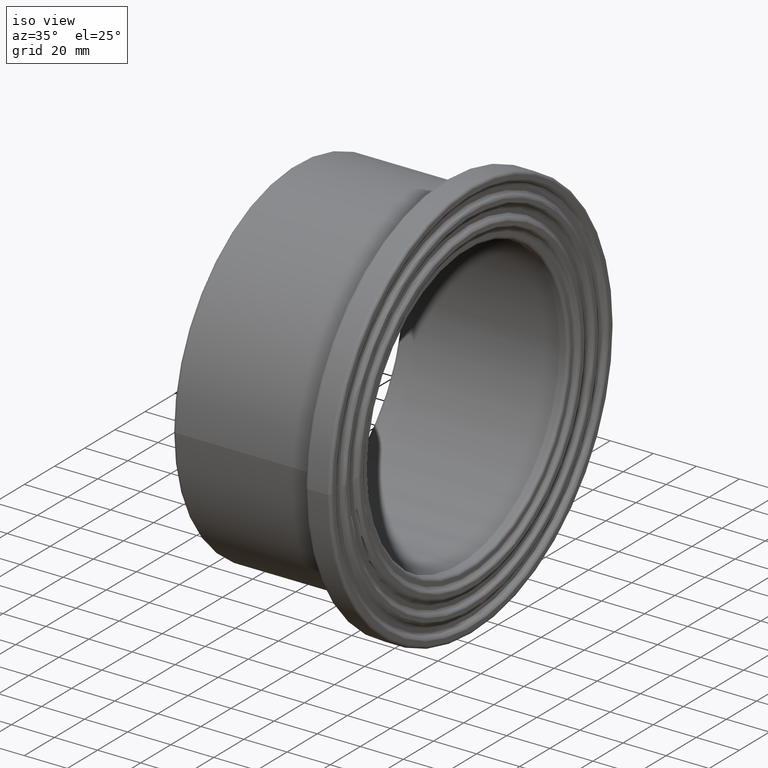
[diagram: clean part render]
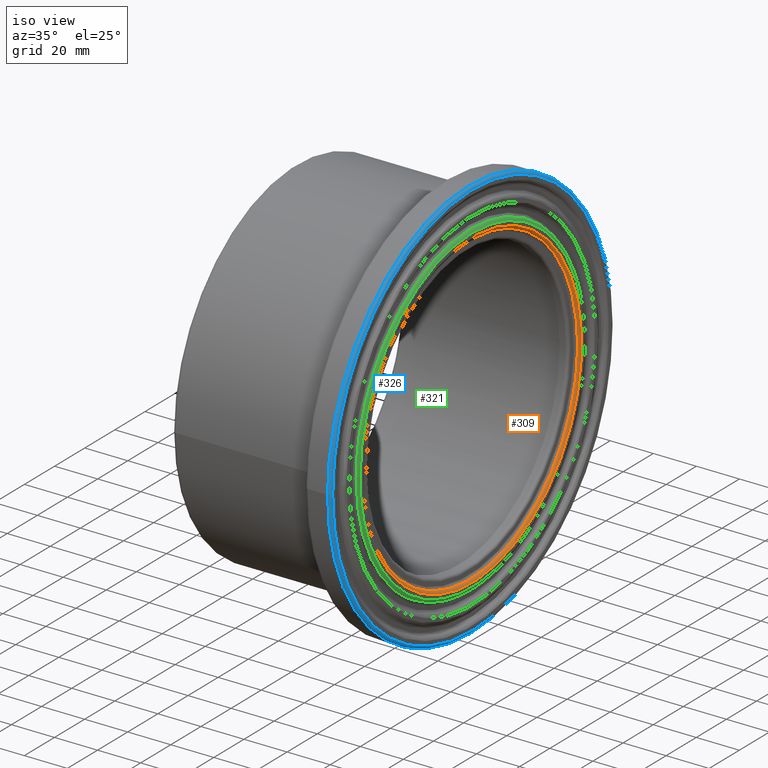
[diagram: same view with three faces highlighted in distinct colors, each labeled with its STEP entity id]
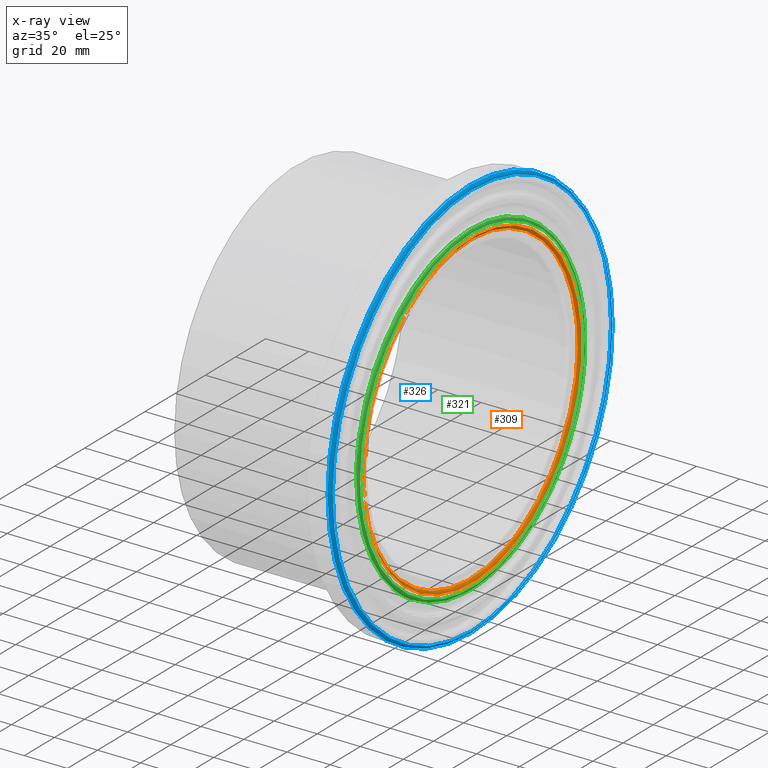
[diagram: x-ray of the same camera — body ghosted, the three highlighted faces saturated]
A machine part, iso view with three faces highlighted in distinct colors.
The next image is the same camera in x-ray (body ghosted, the three faces saturated) — at least one of them is partly hidden behind the body in this view.
Their STEP definitions:

[orange] entity #309 — the highlighted toroidal blend (fillet) surface has major radius 72.4833 mm and minor (blend) radius 1.4 mm.
#25=B_SPLINE_CURVE_WITH_KNOTS('',3,(#716,#717,#718,#719,#720,#721,#722,
#723,#724,#725,#726,#727,#728,#729,#730,#731,#732,#733,#734,#735,#736,#737,
#738,#739,#740,#741,#742,#743,#744,#745,#746,#747,#748,#749,#750,#751,#752,
#753),.UNSPECIFIED.,.T.,.F.,(4,1,1,1,1,1,1,1,1,1,1,1,1,1,1,1,1,1,1,1,1,
1,1,1,1,1,1,1,1,1,1,1,1,1,1,4),(21.8178464219605,23.3762640235291,24.9346816250978,
26.4930992266664,28.051516828235,29.0904618959474,30.1294069636598,32.2072970990846,
33.246242166797,34.2851872345094,35.3241323022218,36.3630773699342,37.4020224376466,
38.440967505359,39.4799125730714,40.5188576407839,42.5967477762087,44.6746379116335,
45.7135829793459,46.7525280470583,48.8304181824831,49.8693632501955,50.9083083179079,
51.9472533856203,52.9861984533327,54.0251435210451,55.0640885887575,56.1030336564699,
57.1419787241823,58.1809237918948,59.2198688596072,60.7782864611758,62.3367040627444,
63.1159128635287,63.895121664313,65.4535392658816),.UNSPECIFIED.);
#46=FACE_BOUND('',#102,.T.);
#70=FACE_OUTER_BOUND('',#101,.T.);
#101=EDGE_LOOP('',(#239));
#102=EDGE_LOOP('',(#240));
#149=CIRCLE('',#343,72.4833333333333);
#172=VERTEX_POINT('',#714);
#173=VERTEX_POINT('',#755);
#201=EDGE_CURVE('',#172,#172,#25,.T.);
#202=EDGE_CURVE('',#173,#173,#149,.T.);
#239=ORIENTED_EDGE('',*,*,#201,.F.);
#240=ORIENTED_EDGE('',*,*,#202,.T.);
#296=TOROIDAL_SURFACE('',#342,72.4833333333333,1.4);
#309=ADVANCED_FACE('',(#70,#46),#296,.T.);
#342=AXIS2_PLACEMENT_3D('',#754,#397,#398);
#343=AXIS2_PLACEMENT_3D('',#756,#399,#400);
#397=DIRECTION('center_axis',(-1.,0.,0.));
#398=DIRECTION('ref_axis',(0.,0.,1.));
#399=DIRECTION('center_axis',(1.,0.,0.));
#400=DIRECTION('ref_axis',(0.,1.,6.12323399573677E-17));
#714=CARTESIAN_POINT('',(81.1,-71.1756401955309,-0.0577824614840613));
#716=CARTESIAN_POINT('Ctrl Pts',(81.1,-71.1768057274205,-0.0586076905184905));
#717=CARTESIAN_POINT('Ctrl Pts',(81.1,-71.1748791873368,-5.35903913642619));
#718=CARTESIAN_POINT('Ctrl Pts',(81.1000000000001,-69.9445845629296,-16.0905232318301));
#719=CARTESIAN_POINT('Ctrl Pts',(81.1,-64.6539900110415,-31.1756837843878));
#720=CARTESIAN_POINT('Ctrl Pts',(81.1,-56.0380870765707,-44.8497412929448));
#721=CARTESIAN_POINT('Ctrl Pts',(81.1,-45.9818489028584,-54.8822392328796));
#722=CARTESIAN_POINT('Ctrl Pts',(81.1,-35.6057793604696,-61.9351387505585));
#723=CARTESIAN_POINT('Ctrl Pts',(81.1,-22.8510930871004,-68.0623889299427));
#724=CARTESIAN_POINT('Ctrl Pts',(81.1,-8.74825764680152,-71.2664218852784));
#725=CARTESIAN_POINT('Ctrl Pts',(81.1,5.39705010823838,-71.2327671375883));
#726=CARTESIAN_POINT('Ctrl Pts',(81.1,16.0428904426377,-69.6226877988981));
#727=CARTESIAN_POINT('Ctrl Pts',(81.1,26.1836579863873,-66.4640242126126));
#728=CARTESIAN_POINT('Ctrl Pts',(81.1,35.809521994142,-61.8261856733495));
#729=CARTESIAN_POINT('Ctrl Pts',(81.1,44.6634452769059,-55.7552055653287));
#730=CARTESIAN_POINT('Ctrl Pts',(81.1,52.4215587631848,-48.5390937008044));
#731=CARTESIAN_POINT('Ctrl Pts',(81.1000000000001,59.1131078629093,-40.1217107187487));
#732=CARTESIAN_POINT('Ctrl Pts',(81.1,66.1949511595139,-27.7980586136672));
#733=CARTESIAN_POINT('Ctrl Pts',(81.1,71.4301990414328,-10.727231957083));
#734=CARTESIAN_POINT('Ctrl Pts',(81.1,71.4479356721216,7.13655385252205));
#735=CARTESIAN_POINT('Ctrl Pts',(81.1000000000001,68.2523756628288,21.0999029481874));
#736=CARTESIAN_POINT('Ctrl Pts',(81.1,63.0861253913124,34.2783604025386));
#737=CARTESIAN_POINT('Ctrl Pts',(81.1000000000001,54.942162329805,46.2203485495528));
#738=CARTESIAN_POINT('Ctrl Pts',(81.1,44.5605963054296,55.8377493857815));
#739=CARTESIAN_POINT('Ctrl Pts',(81.1,35.6638981019817,61.9078653433799));
#740=CARTESIAN_POINT('Ctrl Pts',(81.1,26.0935994850792,66.4999566000501));
#741=CARTESIAN_POINT('Ctrl Pts',(81.1,15.8829882409445,69.6598794807487));
#742=CARTESIAN_POINT('Ctrl Pts',(81.1,5.26621828282683,71.2441474353965));
#743=CARTESIAN_POINT('Ctrl Pts',(81.1000000000001,-5.3264385161233,71.242365852279));
#744=CARTESIAN_POINT('Ctrl Pts',(81.1,-15.9659217086773,69.6381411730917));
#745=CARTESIAN_POINT('Ctrl Pts',(81.1,-26.1382868387418,66.4840968376944));
#746=CARTESIAN_POINT('Ctrl Pts',(81.1,-35.7391074229907,61.8632574083668));
#747=CARTESIAN_POINT('Ctrl Pts',(81.1000000000001,-46.08304036402,54.7944811299419));
#748=CARTESIAN_POINT('Ctrl Pts',(81.1,-56.1161766341123,44.7503132363359));
#749=CARTESIAN_POINT('Ctrl Pts',(81.1,-63.2940065944013,33.3184614342516));
#750=CARTESIAN_POINT('Ctrl Pts',(81.1000000000001,-67.3268626721252,23.5339443752229));
#751=CARTESIAN_POINT('Ctrl Pts',(81.1,-70.2990828219925,13.2271394236499));
#752=CARTESIAN_POINT('Ctrl Pts',(81.1,-71.1787322675043,5.2418237553892));
#753=CARTESIAN_POINT('Ctrl Pts',(81.1,-71.1768057274205,-0.0586076905184905));
#754=CARTESIAN_POINT('Origin',(80.6,0.,0.));
#755=CARTESIAN_POINT('',(82.,-72.4833333333333,-1.33149723237296E-14));
#756=CARTESIAN_POINT('Origin',(82.,0.,0.));

[blue] entity #326 — the highlighted toroidal blend (fillet) surface has major radius 92.6 mm and minor (blend) radius 1.4 mm.
#59=FACE_BOUND('',#132,.T.);
#87=FACE_OUTER_BOUND('',#131,.T.);
#131=EDGE_LOOP('',(#281));
#132=EDGE_LOOP('',(#282));
#151=CIRCLE('',#347,92.6);
#163=CIRCLE('',#370,94.);
#177=VERTEX_POINT('',#1186);
#191=VERTEX_POINT('',#2200);
#207=EDGE_CURVE('',#177,#177,#151,.T.);
#224=EDGE_CURVE('',#191,#191,#163,.T.);
#281=ORIENTED_EDGE('',*,*,#207,.T.);
#282=ORIENTED_EDGE('',*,*,#224,.T.);
#302=TOROIDAL_SURFACE('',#369,92.6,1.4);
#326=ADVANCED_FACE('',(#87,#59),#302,.T.);
#347=AXIS2_PLACEMENT_3D('',#1187,#407,#408);
#369=AXIS2_PLACEMENT_3D('',#2199,#451,#452);
#370=AXIS2_PLACEMENT_3D('',#2201,#453,#454);
#407=DIRECTION('center_axis',(-1.,0.,0.));
#408=DIRECTION('ref_axis',(0.,1.,6.12323399573677E-17));
#451=DIRECTION('center_axis',(-1.,0.,0.));
#452=DIRECTION('ref_axis',(0.,0.,1.));
#453=DIRECTION('center_axis',(1.,0.,0.));
#454=DIRECTION('ref_axis',(0.,1.,6.12323399573677E-17));
#1186=CARTESIAN_POINT('',(82.,-92.6,5.67011468005225E-15));
#1187=CARTESIAN_POINT('Origin',(82.,0.,0.));
#2199=CARTESIAN_POINT('Origin',(80.6,0.,0.));
#2200=CARTESIAN_POINT('',(80.6,-94.,-1.72675198679777E-14));
#2201=CARTESIAN_POINT('Origin',(80.6,0.,0.));

[green] entity #321 — the highlighted face is a freeform B-spline surface patch.
#18=B_SPLINE_SURFACE_WITH_KNOTS('',3,3,((#1576,#1577,#1578,#1579,#1580,
#1581,#1582,#1583,#1584,#1585,#1586,#1587,#1588,#1589,#1590,#1591,#1592,
#1593,#1594,#1595,#1596,#1597,#1598,#1599,#1600,#1601,#1602,#1603,#1604,
#1605,#1606,#1607,#1608,#1609,#1610,#1611,#1612,#1613,#1614,#1615,#1616,
#1617,#1618,#1619,#1620,#1621,#1622,#1623,#1624,#1625,#1626,#1627),(#1628,
#1629,#1630,#1631,#1632,#1633,#1634,#1635,#1636,#1637,#1638,#1639,#1640,
#1641,#1642,#1643,#1644,#1645,#1646,#1647,#1648,#1649,#1650,#1651,#1652,
#1653,#1654,#1655,#1656,#1657,#1658,#1659,#1660,#1661,#1662,#1663,#1664,
#1665,#1666,#1667,#1668,#1669,#1670,#1671,#1672,#1673,#1674,#1675,#1676,
#1677,#1678,#1679),(#1680,#1681,#1682,#1683,#1684,#1685,#1686,#1687,#1688,
#1689,#1690,#1691,#1692,#1693,#1694,#1695,#1696,#1697,#1698,#1699,#1700,
#1701,#1702,#1703,#1704,#1705,#1706,#1707,#1708,#1709,#1710,#1711,#1712,
#1713,#1714,#1715,#1716,#1717,#1718,#1719,#1720,#1721,#1722,#1723,#1724,
#1725,#1726,#1727,#1728,#1729,#1730,#1731),(#1732,#1733,#1734,#1735,#1736,
#1737,#1738,#1739,#1740,#1741,#1742,#1743,#1744,#1745,#1746,#1747,#1748,
#1749,#1750,#1751,#1752,#1753,#1754,#1755,#1756,#1757,#1758,#1759,#1760,
#1761,#1762,#1763,#1764,#1765,#1766,#1767,#1768,#1769,#1770,#1771,#1772,
#1773,#1774,#1775,#1776,#1777,#1778,#1779,#1780,#1781,#1782,#1783),(#1784,
#1785,#1786,#1787,#1788,#1789,#1790,#1791,#1792,#1793,#1794,#1795,#1796,
#1797,#1798,#1799,#1800,#1801,#1802,#1803,#1804,#1805,#1806,#1807,#1808,
#1809,#1810,#1811,#1812,#1813,#1814,#1815,#1816,#1817,#1818,#1819,#1820,
#1821,#1822,#1823,#1824,#1825,#1826,#1827,#1828,#1829,#1830,#1831,#1832,
#1833,#1834,#1835)),.UNSPECIFIED.,.F.,.T.,.F.,(4,1,4),(4,1,1,1,1,1,1,1,
1,1,1,1,1,1,1,1,1,1,1,1,1,1,1,1,1,1,1,1,1,1,1,1,1,1,1,1,1,1,1,1,1,1,1,1,
1,1,1,1,1,4),(0.,0.5,1.),(23.2490949391893,24.9097445777029,26.5703942162164,
28.2310438547299,29.0613686739867,29.8916934932434,30.7220183125002,31.9675055413854,
33.2129927702705,34.0433175895273,34.873642408784,35.2888048184124,36.5342920472975,
38.1949416858111,38.7484915653156,39.8555913243246,40.9626910833336,41.7930159025904,
42.0697908423426,42.7617281917233,43.1768906013516,45.3910901193697,46.2214149386264,
47.0517397578832,47.6052896373877,48.7123893963967,49.8194891554057,51.4801387939193,
52.2066730107689,53.1407884324328,53.5559508420612,54.8014380709463,55.6317628902031,
56.4620877094598,57.2924125287166,57.9151561431592,58.9530621672301,59.7833869864869,
60.6137118057436,61.4440366250004,61.8591990346288,63.1046862635139,64.7653359020275,
65.38807951647,66.425985540541,67.0487291549836,67.2563103597978,68.0866351790545,
68.9169599983113,69.747284817568),.UNSPECIFIED.);
#26=B_SPLINE_CURVE_WITH_KNOTS('',3,(#759,#760,#761,#762,#763,#764,#765,
#766,#767,#768,#769,#770,#771,#772,#773,#774,#775,#776,#777,#778,#779,#780,
#781,#782,#783,#784,#785,#786,#787,#788,#789,#790,#791,#792,#793,#794,#795,
#796,#797,#798,#799,#800,#801,#802,#803,#804,#805,#806,#807,#808,#809,#810),
 .UNSPECIFIED.,.T.,.F.,(4,1,1,1,1,1,1,1,1,1,1,1,1,1,1,1,1,1,1,1,1,1,1,1,
1,1,1,1,1,1,1,1,1,1,1,1,1,1,1,1,1,1,1,1,1,1,1,1,1,4),(23.2490949391893,
24.9097445777029,26.5703942162164,28.2310438547299,29.0613686739867,29.8916934932434,
30.7220183125002,31.9675055413854,33.2129927702705,34.0433175895273,34.873642408784,
35.2888048184124,36.5342920472975,38.1949416858111,38.7484915653156,39.8555913243246,
40.9626910833336,41.7930159025904,42.0697908423426,42.7617281917233,43.1768906013516,
45.3910901193697,46.2214149386264,47.0517397578832,47.6052896373877,48.7123893963967,
49.8194891554057,51.4801387939193,52.2066730107689,53.1407884324328,53.5559508420612,
54.8014380709463,55.6317628902031,56.4620877094598,57.2924125287166,57.9151561431592,
58.9530621672301,59.7833869864869,60.6137118057436,61.4440366250004,61.8591990346288,
63.1046862635139,64.7653359020275,65.38807951647,66.425985540541,67.0487291549836,
67.2563103597978,68.0866351790545,68.9169599983113,69.747284817568),
 .UNSPECIFIED.);
#31=B_SPLINE_CURVE_WITH_KNOTS('',3,(#1838,#1839,#1840,#1841,#1842,#1843,
#1844,#1845,#1846,#1847,#1848,#1849,#1850,#1851,#1852,#1853,#1854,#1855,
#1856,#1857,#1858,#1859,#1860,#1861,#1862,#1863,#1864,#1865,#1866,#1867,
#1868,#1869,#1870,#1871,#1872,#1873,#1874,#1875,#1876,#1877,#1878,#1879,
#1880,#1881,#1882,#1883,#1884,#1885,#1886,#1887,#1888,#1889),
 .UNSPECIFIED.,.T.,.F.,(4,1,1,1,1,1,1,1,1,1,1,1,1,1,1,1,1,1,1,1,1,1,1,1,
1,1,1,1,1,1,1,1,1,1,1,1,1,1,1,1,1,1,1,1,1,1,1,1,1,4),(-69.747284817568,
-68.9169599983113,-68.0866351790545,-67.2563103597978,-67.0487291549836,
-66.425985540541,-65.38807951647,-64.7653359020275,-63.1046862635139,-61.8591990346288,
-61.4440366250004,-60.6137118057436,-59.7833869864869,-58.9530621672301,
-57.9151561431592,-57.2924125287166,-56.4620877094598,-55.6317628902031,
-54.8014380709463,-53.5559508420612,-53.1407884324328,-52.2066730107689,
-51.4801387939193,-49.8194891554057,-48.7123893963967,-47.6052896373877,
-47.0517397578832,-46.2214149386264,-45.3910901193697,-43.1768906013516,
-42.7617281917233,-42.0697908423426,-41.7930159025904,-40.9626910833336,
-39.8555913243246,-38.7484915653156,-38.1949416858111,-36.5342920472975,
-35.2888048184124,-34.873642408784,-34.0433175895273,-33.2129927702705,
-31.9675055413854,-30.7220183125002,-29.8916934932434,-29.0613686739867,
-28.2310438547299,-26.5703942162164,-24.9097445777029,-23.2490949391893),
 .UNSPECIFIED.);
#82=FACE_OUTER_BOUND('',#123,.T.);
#123=EDGE_LOOP('',(#267,#268,#269,#270));
#160=CIRCLE('',#363,1.4);
#174=VERTEX_POINT('',#758);
#187=VERTEX_POINT('',#1836);
#203=EDGE_CURVE('',#174,#174,#26,.T.);
#218=EDGE_CURVE('',#187,#174,#160,.T.);
#219=EDGE_CURVE('',#187,#187,#31,.T.);
#267=ORIENTED_EDGE('',*,*,#218,.T.);
#268=ORIENTED_EDGE('',*,*,#203,.T.);
#269=ORIENTED_EDGE('',*,*,#218,.F.);
#270=ORIENTED_EDGE('',*,*,#219,.T.);
#321=ADVANCED_FACE('',(#82),#18,.F.);
#363=AXIS2_PLACEMENT_3D('',#1837,#439,#440);
#439=DIRECTION('center_axis',(0.,0.000811828910623439,0.999999670466856));
#440=DIRECTION('ref_axis',(0.357142857142862,-0.934049465815498,0.00075828861018263));
#758=CARTESIAN_POINT('',(82.,-74.4513027663623,0.0604417399368365));
#759=CARTESIAN_POINT('Ctrl Pts',(82.,-74.4526992300747,0.0600329264292912));
#760=CARTESIAN_POINT('Ctrl Pts',(81.9999999999999,-74.455895720333,5.59914785828535));
#761=CARTESIAN_POINT('Ctrl Pts',(82.0000000000002,-73.1598189154375,16.8386830527923));
#762=CARTESIAN_POINT('Ctrl Pts',(81.9999999999998,-67.6322950821705,32.601179076856));
#763=CARTESIAN_POINT('Ctrl Pts',(82.0000000000002,-60.1170815074412,44.5424737361398));
#764=CARTESIAN_POINT('Ctrl Pts',(81.9999999999999,-52.6989053398692,52.8055325888788));
#765=CARTESIAN_POINT('Ctrl Pts',(82.0000000000002,-46.4689677222737,58.3744005344638));
#766=CARTESIAN_POINT('Ctrl Pts',(81.9999999999999,-38.438027237235,64.0491233904722));
#767=CARTESIAN_POINT('Ctrl Pts',(82.0000000000001,-28.5598259443649,69.1342717387768));
#768=CARTESIAN_POINT('Ctrl Pts',(81.9999999999999,-17.8881068852598,72.5288895845535));
#769=CARTESIAN_POINT('Ctrl Pts',(82.0000000000001,-8.21550200655324,74.1540929304394));
#770=CARTESIAN_POINT('Ctrl Pts',(82.,-1.29968193247817,74.5291141783682));
#771=CARTESIAN_POINT('Ctrl Pts',(82.,7.04469214573193,74.289730956626));
#772=CARTESIAN_POINT('Ctrl Pts',(82.,18.1838840419723,72.6959041563912));
#773=CARTESIAN_POINT('Ctrl Pts',(82.,29.1236141703567,68.8435182600528));
#774=CARTESIAN_POINT('Ctrl Pts',(82.,39.0058201044717,63.6100278409341));
#775=CARTESIAN_POINT('Ctrl Pts',(82.,46.7164926930483,58.3246592554254));
#776=CARTESIAN_POINT('Ctrl Pts',(82.,54.1573263935831,51.3980900002443));
#777=CARTESIAN_POINT('Ctrl Pts',(82.,58.9192126449824,45.6385513514273));
#778=CARTESIAN_POINT('Ctrl Pts',(82.,62.4123259805339,40.6962042954939));
#779=CARTESIAN_POINT('Ctrl Pts',(82.,64.8452378627665,36.7224512690442));
#780=CARTESIAN_POINT('Ctrl Pts',(82.0000000000001,69.9213926508306,26.8548581176747));
#781=CARTESIAN_POINT('Ctrl Pts',(82.,73.3520025208349,15.6896001815112));
#782=CARTESIAN_POINT('Ctrl Pts',(82.0000000000001,74.554450482759,2.77306041472059));
#783=CARTESIAN_POINT('Ctrl Pts',(82.,74.4159965875308,-4.62171396664853));
#784=CARTESIAN_POINT('Ctrl Pts',(82.,73.4874536626543,-12.9454668224168));
#785=CARTESIAN_POINT('Ctrl Pts',(82.,71.3899481376841,-22.0743815706923));
#786=CARTESIAN_POINT('Ctrl Pts',(82.0000000000001,66.6683834669963,-34.1209080437327));
#787=CARTESIAN_POINT('Ctrl Pts',(82.,60.3517741590026,-44.1806679168293));
#788=CARTESIAN_POINT('Ctrl Pts',(82.,52.9850585495027,-52.5220822236548));
#789=CARTESIAN_POINT('Ctrl Pts',(82.0000000000001,47.8444450877523,-57.1846523574503));
#790=CARTESIAN_POINT('Ctrl Pts',(81.9999999999999,40.855056022447,-62.4459451601611));
#791=CARTESIAN_POINT('Ctrl Pts',(82.,33.6080739465463,-66.7097337027766));
#792=CARTESIAN_POINT('Ctrl Pts',(82.,24.6422014279076,-70.4188242853112));
#793=CARTESIAN_POINT('Ctrl Pts',(82.,16.5805124720978,-72.7451169804398));
#794=CARTESIAN_POINT('Ctrl Pts',(82.0000000000001,8.97863621147008,-74.0288422467505));
#795=CARTESIAN_POINT('Ctrl Pts',(82.,0.665528669308349,-74.606542606743));
#796=CARTESIAN_POINT('Ctrl Pts',(82.0000000000001,-7.66947849160246,-74.255193523605));
#797=CARTESIAN_POINT('Ctrl Pts',(82.,-16.6596945552736,-72.7263423512559));
#798=CARTESIAN_POINT('Ctrl Pts',(82.,-24.7032085374861,-70.3976972802785));
#799=CARTESIAN_POINT('Ctrl Pts',(82.0000000000001,-31.0998628143658,-67.7436182922303));
#800=CARTESIAN_POINT('Ctrl Pts',(82.,-38.5408053717796,-63.9010170300682));
#801=CARTESIAN_POINT('Ctrl Pts',(82.0000000000001,-47.8755288977713,-57.6438749121672));
#802=CARTESIAN_POINT('Ctrl Pts',(81.9999999999999,-56.2293030090247,-49.2770682036672));
#803=CARTESIAN_POINT('Ctrl Pts',(82.,-62.8424564841505,-40.2261616216055));
#804=CARTESIAN_POINT('Ctrl Pts',(82.,-66.6429962353382,-33.542941150113));
#805=CARTESIAN_POINT('Ctrl Pts',(82.,-69.1040734920599,-27.8191883501283));
#806=CARTESIAN_POINT('Ctrl Pts',(82.,-71.0134966586394,-22.5894514249345));
#807=CARTESIAN_POINT('Ctrl Pts',(82.,-72.7522851007319,-16.5404752437142));
#808=CARTESIAN_POINT('Ctrl Pts',(82.,-74.1510186712794,-8.25579511552117));
#809=CARTESIAN_POINT('Ctrl Pts',(82.,-74.4511009849455,-2.70952453949872));
#810=CARTESIAN_POINT('Ctrl Pts',(82.,-74.4526992300747,0.0600329264292909));
#1576=CARTESIAN_POINT('Ctrl Pts',(82.,-74.4526992300747,0.0600329264292912));
#1577=CARTESIAN_POINT('Ctrl Pts',(81.9999999999999,-74.455895720333,5.59914785828535));
#1578=CARTESIAN_POINT('Ctrl Pts',(82.0000000000002,-73.1598189154375,16.8386830527923));
#1579=CARTESIAN_POINT('Ctrl Pts',(81.9999999999998,-67.6322950821705,32.601179076856));
#1580=CARTESIAN_POINT('Ctrl Pts',(82.0000000000002,-60.1170815074412,44.5424737361398));
#1581=CARTESIAN_POINT('Ctrl Pts',(81.9999999999999,-52.6989053398692,52.8055325888788));
#1582=CARTESIAN_POINT('Ctrl Pts',(82.0000000000002,-46.4689677222737,58.3744005344638));
#1583=CARTESIAN_POINT('Ctrl Pts',(81.9999999999999,-38.438027237235,64.0491233904722));
#1584=CARTESIAN_POINT('Ctrl Pts',(82.0000000000001,-28.5598259443649,69.1342717387768));
#1585=CARTESIAN_POINT('Ctrl Pts',(81.9999999999999,-17.8881068852598,72.5288895845535));
#1586=CARTESIAN_POINT('Ctrl Pts',(82.0000000000001,-8.21550200655324,74.1540929304394));
#1587=CARTESIAN_POINT('Ctrl Pts',(82.,-1.29968193247817,74.5291141783682));
#1588=CARTESIAN_POINT('Ctrl Pts',(82.,7.04469214573193,74.289730956626));
#1589=CARTESIAN_POINT('Ctrl Pts',(82.,18.1838840419723,72.6959041563912));
#1590=CARTESIAN_POINT('Ctrl Pts',(82.,29.1236141703567,68.8435182600528));
#1591=CARTESIAN_POINT('Ctrl Pts',(82.,39.0058201044717,63.6100278409341));
#1592=CARTESIAN_POINT('Ctrl Pts',(82.,46.7164926930483,58.3246592554254));
#1593=CARTESIAN_POINT('Ctrl Pts',(82.,54.1573263935831,51.3980900002443));
#1594=CARTESIAN_POINT('Ctrl Pts',(82.,58.9192126449824,45.6385513514273));
#1595=CARTESIAN_POINT('Ctrl Pts',(82.,62.4123259805339,40.6962042954939));
#1596=CARTESIAN_POINT('Ctrl Pts',(82.,64.8452378627665,36.7224512690442));
#1597=CARTESIAN_POINT('Ctrl Pts',(82.0000000000001,69.9213926508306,26.8548581176747));
#1598=CARTESIAN_POINT('Ctrl Pts',(82.,73.3520025208349,15.6896001815112));
#1599=CARTESIAN_POINT('Ctrl Pts',(82.0000000000001,74.554450482759,2.77306041472059));
#1600=CARTESIAN_POINT('Ctrl Pts',(82.,74.4159965875308,-4.62171396664853));
#1601=CARTESIAN_POINT('Ctrl Pts',(82.,73.4874536626543,-12.9454668224168));
#1602=CARTESIAN_POINT('Ctrl Pts',(82.,71.3899481376841,-22.0743815706923));
#1603=CARTESIAN_POINT('Ctrl Pts',(82.0000000000001,66.6683834669963,-34.1209080437327));
#1604=CARTESIAN_POINT('Ctrl Pts',(82.,60.3517741590026,-44.1806679168293));
#1605=CARTESIAN_POINT('Ctrl Pts',(82.,52.9850585495027,-52.5220822236548));
#1606=CARTESIAN_POINT('Ctrl Pts',(82.0000000000001,47.8444450877523,-57.1846523574503));
#1607=CARTESIAN_POINT('Ctrl Pts',(81.9999999999999,40.855056022447,-62.4459451601611));
#1608=CARTESIAN_POINT('Ctrl Pts',(82.,33.6080739465463,-66.7097337027766));
#1609=CARTESIAN_POINT('Ctrl Pts',(82.,24.6422014279076,-70.4188242853112));
#1610=CARTESIAN_POINT('Ctrl Pts',(82.,16.5805124720978,-72.7451169804398));
#1611=CARTESIAN_POINT('Ctrl Pts',(82.0000000000001,8.97863621147008,-74.0288422467505));
#1612=CARTESIAN_POINT('Ctrl Pts',(82.,0.665528669308349,-74.606542606743));
#1613=CARTESIAN_POINT('Ctrl Pts',(82.0000000000001,-7.66947849160246,-74.255193523605));
#1614=CARTESIAN_POINT('Ctrl Pts',(82.,-16.6596945552736,-72.7263423512559));
#1615=CARTESIAN_POINT('Ctrl Pts',(82.,-24.7032085374861,-70.3976972802785));
#1616=CARTESIAN_POINT('Ctrl Pts',(82.0000000000001,-31.0998628143658,-67.7436182922303));
#1617=CARTESIAN_POINT('Ctrl Pts',(82.,-38.5408053717796,-63.9010170300682));
#1618=CARTESIAN_POINT('Ctrl Pts',(82.0000000000001,-47.8755288977713,-57.6438749121672));
#1619=CARTESIAN_POINT('Ctrl Pts',(81.9999999999999,-56.2293030090247,-49.2770682036672));
#1620=CARTESIAN_POINT('Ctrl Pts',(82.,-62.8424564841505,-40.2261616216055));
#1621=CARTESIAN_POINT('Ctrl Pts',(82.,-66.6429962353382,-33.542941150113));
#1622=CARTESIAN_POINT('Ctrl Pts',(82.,-69.1040734920599,-27.8191883501283));
#1623=CARTESIAN_POINT('Ctrl Pts',(82.,-71.0134966586394,-22.5894514249345));
#1624=CARTESIAN_POINT('Ctrl Pts',(82.,-72.7522851007319,-16.5404752437142));
#1625=CARTESIAN_POINT('Ctrl Pts',(82.,-74.1510186712794,-8.25579511552117));
#1626=CARTESIAN_POINT('Ctrl Pts',(82.,-74.4511009849455,-2.70952453949872));
#1627=CARTESIAN_POINT('Ctrl Pts',(82.,-74.4526992300747,0.0600329264292912));
#1628=CARTESIAN_POINT('Ctrl Pts',(82.,-74.734008657283,0.060258730579085));
#1629=CARTESIAN_POINT('Ctrl Pts',(81.9999999999999,-74.7372173643075,5.62030458317384));
#1630=CARTESIAN_POINT('Ctrl Pts',(82.0000000000002,-73.4362437212181,16.902304269129));
#1631=CARTESIAN_POINT('Ctrl Pts',(81.9999999999998,-67.8878339686154,32.724359833832));
#1632=CARTESIAN_POINT('Ctrl Pts',(82.0000000000002,-60.3442270157786,44.7107695749508));
#1633=CARTESIAN_POINT('Ctrl Pts',(81.9999999999999,-52.8980203016522,53.0050523059585));
#1634=CARTESIAN_POINT('Ctrl Pts',(82.0000000000002,-46.6445431901416,58.5949610233206));
#1635=CARTESIAN_POINT('Ctrl Pts',(81.9999999999999,-38.5832623627787,64.2911233161564));
#1636=CARTESIAN_POINT('Ctrl Pts',(82.0000000000001,-28.667733210956,69.3954871242492));
#1637=CARTESIAN_POINT('Ctrl Pts',(81.9999999999999,-17.9556959718556,72.8029299563525));
#1638=CARTESIAN_POINT('Ctrl Pts',(82.0000000000001,-8.24654223551465,74.4342742517443));
#1639=CARTESIAN_POINT('Ctrl Pts',(82.,-1.30459383046572,74.8107124896752));
#1640=CARTESIAN_POINT('Ctrl Pts',(82.,7.07131068071327,74.5704245156832));
#1641=CARTESIAN_POINT('Ctrl Pts',(82.,18.2525913931147,72.9705756698215));
#1642=CARTESIAN_POINT('Ctrl Pts',(82.,29.2336513498767,69.1036348807878));
#1643=CARTESIAN_POINT('Ctrl Pts',(82.,39.1531998254698,63.8503694886418));
#1644=CARTESIAN_POINT('Ctrl Pts',(82.,46.8930044233816,58.5450305305611));
#1645=CARTESIAN_POINT('Ctrl Pts',(82.,54.3619527617004,51.592291297428));
#1646=CARTESIAN_POINT('Ctrl Pts',(82.,59.1418292580149,45.8109923506438));
#1647=CARTESIAN_POINT('Ctrl Pts',(82.,62.6481433898173,40.8499685413258));
#1648=CARTESIAN_POINT('Ctrl Pts',(82.,65.0902459533,36.8612036504683));
#1649=CARTESIAN_POINT('Ctrl Pts',(82.0000000000001,70.1855834998614,26.9563206285237));
#1650=CARTESIAN_POINT('Ctrl Pts',(82.,73.6291518557778,15.7488848215472));
#1651=CARTESIAN_POINT('Ctrl Pts',(82.0000000000001,74.8361446670081,2.78353867860269));
#1652=CARTESIAN_POINT('Ctrl Pts',(82.,74.6971672640274,-4.63917898175438));
#1653=CARTESIAN_POINT('Ctrl Pts',(82.,73.7651162515798,-12.9943775409876));
#1654=CARTESIAN_POINT('Ctrl Pts',(82.,71.6596858483236,-22.1577867752668));
#1655=CARTESIAN_POINT('Ctrl Pts',(82.0000000000001,66.9202796496429,-34.2498308442137));
#1656=CARTESIAN_POINT('Ctrl Pts',(82.,60.579807316639,-44.3475962493494));
#1657=CARTESIAN_POINT('Ctrl Pts',(82.,53.1852545252802,-52.7205307015855));
#1658=CARTESIAN_POINT('Ctrl Pts',(82.0000000000001,48.025218368848,-57.4007174890097));
#1659=CARTESIAN_POINT('Ctrl Pts',(81.9999999999999,41.0094207959168,-62.6818890068898));
#1660=CARTESIAN_POINT('Ctrl Pts',(82.,33.7350565795373,-66.961787942928));
#1661=CARTESIAN_POINT('Ctrl Pts',(82.,24.7353096994586,-70.6848920636809));
#1662=CARTESIAN_POINT('Ctrl Pts',(82.,16.6431579350954,-73.0199748361801));
#1663=CARTESIAN_POINT('Ctrl Pts',(82.0000000000001,9.01256470094517,-74.3085499661844));
#1664=CARTESIAN_POINT('Ctrl Pts',(82.,0.668041673786519,-74.8884334108157));
#1665=CARTESIAN_POINT('Ctrl Pts',(82.0000000000001,-7.69845854914456,-74.5357566602272));
#1666=CARTESIAN_POINT('Ctrl Pts',(82.,-16.7226388675471,-73.001129355159));
#1667=CARTESIAN_POINT('Ctrl Pts',(82.,-24.7965461021909,-70.6636857914579));
#1668=CARTESIAN_POINT('Ctrl Pts',(82.0000000000001,-31.217370054719,-67.9995780158828));
#1669=CARTESIAN_POINT('Ctrl Pts',(82.,-38.6864268316926,-64.1424585434578));
#1670=CARTESIAN_POINT('Ctrl Pts',(82.0000000000001,-48.0564199528303,-57.8616741753215));
#1671=CARTESIAN_POINT('Ctrl Pts',(81.9999999999999,-56.4417574916668,-49.4632559135925));
#1672=CARTESIAN_POINT('Ctrl Pts',(82.,-63.0798983778083,-40.37815017688));
#1673=CARTESIAN_POINT('Ctrl Pts',(82.,-66.8947985411794,-33.6696779008024));
#1674=CARTESIAN_POINT('Ctrl Pts',(82.,-69.3651730793674,-27.9243011648346));
#1675=CARTESIAN_POINT('Ctrl Pts',(82.,-71.2818134153783,-22.6747976551595));
#1676=CARTESIAN_POINT('Ctrl Pts',(82.,-73.0271688145047,-16.6029745614916));
#1677=CARTESIAN_POINT('Ctrl Pts',(82.,-74.4311889135337,-8.28698568382809));
#1678=CARTESIAN_POINT('Ctrl Pts',(82.,-74.7324043037708,-2.71976419571828));
#1679=CARTESIAN_POINT('Ctrl Pts',(82.,-74.734008657283,0.060258730579085));
#1680=CARTESIAN_POINT('Ctrl Pts',(81.824936217071,-75.2957734783214,0.060714525699144));
#1681=CARTESIAN_POINT('Ctrl Pts',(81.824936217071,-75.2990059179456,5.66254854000237));
#1682=CARTESIAN_POINT('Ctrl Pts',(81.8249362170711,-73.9882524531257,17.0293605315843));
#1683=CARTESIAN_POINT('Ctrl Pts',(81.8249362170709,-68.3981386560838,32.9703396439312));
#1684=CARTESIAN_POINT('Ctrl Pts',(81.8249362170711,-60.7978223892893,45.0468591746493));
#1685=CARTESIAN_POINT('Ctrl Pts',(81.824936217071,-53.2956490900365,53.4034804205844));
#1686=CARTESIAN_POINT('Ctrl Pts',(81.824936217071,-46.9951669311278,59.0354089033661));
#1687=CARTESIAN_POINT('Ctrl Pts',(81.824936217071,-38.8732809546228,64.7743932467805));
#1688=CARTESIAN_POINT('Ctrl Pts',(81.824936217071,-28.8832304551397,69.9171205026787));
#1689=CARTESIAN_POINT('Ctrl Pts',(81.8249362170712,-18.0906627500135,73.3501796956671));
#1690=CARTESIAN_POINT('Ctrl Pts',(81.824936217071,-8.30853289682237,74.9937856303476));
#1691=CARTESIAN_POINT('Ctrl Pts',(81.824936217071,-1.31439686980175,75.3730534364163));
#1692=CARTESIAN_POINT('Ctrl Pts',(81.824936217071,7.12446159487765,75.1309600165791));
#1693=CARTESIAN_POINT('Ctrl Pts',(81.824936217071,18.3897879177067,73.5190853009419));
#1694=CARTESIAN_POINT('Ctrl Pts',(81.8249362170711,29.4534033094954,69.6230749814571));
#1695=CARTESIAN_POINT('Ctrl Pts',(81.824936217071,39.4475045910256,64.3303241556559));
#1696=CARTESIAN_POINT('Ctrl Pts',(81.8249362170711,47.2454929706749,58.9851066260679));
#1697=CARTESIAN_POINT('Ctrl Pts',(81.824936217071,54.7705830535496,51.9801015260004));
#1698=CARTESIAN_POINT('Ctrl Pts',(81.824936217071,59.5863944631682,46.155341668963));
#1699=CARTESIAN_POINT('Ctrl Pts',(81.824936217071,63.1190579971265,41.1570342358577));
#1700=CARTESIAN_POINT('Ctrl Pts',(81.8249362170711,65.5795223456331,37.1382796432004));
#1701=CARTESIAN_POINT('Ctrl Pts',(81.824936217071,70.7131519367092,27.1589611123513));
#1702=CARTESIAN_POINT('Ctrl Pts',(81.8249362170711,74.1826151236117,15.8672568930202));
#1703=CARTESIAN_POINT('Ctrl Pts',(81.8249362170711,75.3986763861804,2.80446038645344));
#1704=CARTESIAN_POINT('Ctrl Pts',(81.824936217071,75.2586553612242,-4.67404409303966));
#1705=CARTESIAN_POINT('Ctrl Pts',(81.8249362170711,74.3195974608343,-13.0920598904329));
#1706=CARTESIAN_POINT('Ctrl Pts',(81.824936217071,72.198340111919,-22.3243432700815));
#1707=CARTESIAN_POINT('Ctrl Pts',(81.8249362170712,67.423313298992,-34.5072775296343));
#1708=CARTESIAN_POINT('Ctrl Pts',(81.824936217071,61.0351710278173,-44.680957238409));
#1709=CARTESIAN_POINT('Ctrl Pts',(81.824936217071,53.5850429040046,-53.1168208313332));
#1710=CARTESIAN_POINT('Ctrl Pts',(81.8249362170711,48.3862183402738,-57.8321885649416));
#1711=CARTESIAN_POINT('Ctrl Pts',(81.8249362170709,41.3176841593614,-63.1530589084818));
#1712=CARTESIAN_POINT('Ctrl Pts',(81.8249362170711,33.9886407059539,-67.4651285457472));
#1713=CARTESIAN_POINT('Ctrl Pts',(81.824936217071,24.9212385427147,-71.21622081006));
#1714=CARTESIAN_POINT('Ctrl Pts',(81.824936217071,16.7682670394509,-73.5688546874112));
#1715=CARTESIAN_POINT('Ctrl Pts',(81.8249362170711,9.08029994091257,-74.8671172908863));
#1716=CARTESIAN_POINT('Ctrl Pts',(81.824936217071,0.673067705961394,-75.4513587413576));
#1717=CARTESIAN_POINT('Ctrl Pts',(81.8249362170711,-7.75632127724532,-75.0960313662628));
#1718=CARTESIAN_POINT('Ctrl Pts',(81.824936217071,-16.8483463338017,-73.5498673099942));
#1719=CARTESIAN_POINT('Ctrl Pts',(81.824936217071,-24.9829386223441,-71.1948535825906));
#1720=CARTESIAN_POINT('Ctrl Pts',(81.8249362170711,-31.4520248072046,-68.5107220630742));
#1721=CARTESIAN_POINT('Ctrl Pts',(81.8249362170711,-38.9772264478141,-64.6246076840883));
#1722=CARTESIAN_POINT('Ctrl Pts',(81.824936217071,-48.4176535510764,-58.2966129144044));
#1723=CARTESIAN_POINT('Ctrl Pts',(81.8249362170711,-56.8660229552269,-49.8350613611048));
#1724=CARTESIAN_POINT('Ctrl Pts',(81.8249362170711,-63.5540603846339,-40.6816684418314));
#1725=CARTESIAN_POINT('Ctrl Pts',(81.824936217071,-67.3976349716846,-33.9227699930945));
#1726=CARTESIAN_POINT('Ctrl Pts',(81.8249362170711,-69.8865833080888,-28.1341991748944));
#1727=CARTESIAN_POINT('Ctrl Pts',(81.824936217071,-71.8176233305754,-22.845254600292));
#1728=CARTESIAN_POINT('Ctrl Pts',(81.824936217071,-73.5761061462606,-16.7277673648431));
#1729=CARTESIAN_POINT('Ctrl Pts',(81.824936217071,-74.990675609657,-8.34928563738865));
#1730=CARTESIAN_POINT('Ctrl Pts',(81.824936217071,-75.2941572585093,-2.74020248145246));
#1731=CARTESIAN_POINT('Ctrl Pts',(81.824936217071,-75.2957734783214,0.060714525699144));
#1732=CARTESIAN_POINT('Ctrl Pts',(81.3627520539164,-75.6599260254542,0.0610009641591265));
#1733=CARTESIAN_POINT('Ctrl Pts',(81.3627520539164,-75.6631750783912,5.68994206470162));
#1734=CARTESIAN_POINT('Ctrl Pts',(81.3627520539163,-74.3460839176316,17.1117092315282));
#1735=CARTESIAN_POINT('Ctrl Pts',(81.3627520539165,-68.7289282060638,33.1298053461058));
#1736=CARTESIAN_POINT('Ctrl Pts',(81.3627520539164,-61.0918675027587,45.2647059830353));
#1737=CARTESIAN_POINT('Ctrl Pts',(81.3627520539164,-53.5533975881472,53.6617636472286));
#1738=CARTESIAN_POINT('Ctrl Pts',(81.3627520539164,-47.2224407842214,59.3209266946329));
#1739=CARTESIAN_POINT('Ctrl Pts',(81.3627520539163,-39.0612994504434,65.0876542520917));
#1740=CARTESIAN_POINT('Ctrl Pts',(81.3627520539166,-29.0229030452605,70.2552667419999));
#1741=CARTESIAN_POINT('Ctrl Pts',(81.3627520539163,-18.178163680845,73.704921359171));
#1742=CARTESIAN_POINT('Ctrl Pts',(81.3627520539165,-8.34870885500015,75.3564786431801));
#1743=CARTESIAN_POINT('Ctrl Pts',(81.3627520539164,-1.32076231080177,75.737580862542));
#1744=CARTESIAN_POINT('Ctrl Pts',(81.3627520539164,7.15892548181555,75.4943146703433));
#1745=CARTESIAN_POINT('Ctrl Pts',(81.3627520539163,18.4787405085195,73.874644543676));
#1746=CARTESIAN_POINT('Ctrl Pts',(81.3627520539165,29.5958314214301,69.9597977774306));
#1747=CARTESIAN_POINT('Ctrl Pts',(81.3627520539164,39.6382950425957,64.6414430378043));
#1748=CARTESIAN_POINT('Ctrl Pts',(81.3627520539164,47.473984674833,59.2703721795381));
#1749=CARTESIAN_POINT('Ctrl Pts',(81.3627520539165,55.0354715256685,52.2314967272295));
#1750=CARTESIAN_POINT('Ctrl Pts',(81.3627520539163,59.8745602684699,46.3785760317908));
#1751=CARTESIAN_POINT('Ctrl Pts',(81.3627520539165,63.4243266923198,41.3560758458542));
#1752=CARTESIAN_POINT('Ctrl Pts',(81.3627520539164,65.8966782785077,37.3179024242312));
#1753=CARTESIAN_POINT('Ctrl Pts',(81.3627520539165,71.0551581123135,27.2902751573548));
#1754=CARTESIAN_POINT('Ctrl Pts',(81.3627520539163,74.5413752464987,15.9440210586552));
#1755=CARTESIAN_POINT('Ctrl Pts',(81.3627520539164,75.7633287401111,2.8180280261566));
#1756=CARTESIAN_POINT('Ctrl Pts',(81.3627520539164,75.6226278679983,-4.69666671481961));
#1757=CARTESIAN_POINT('Ctrl Pts',(81.3627520539163,74.679030419727,-13.1553630669133));
#1758=CARTESIAN_POINT('Ctrl Pts',(81.3627520539166,72.5475158887025,-22.4323114098224));
#1759=CARTESIAN_POINT('Ctrl Pts',(81.3627520539163,67.749383417745,-34.6741759903867));
#1760=CARTESIAN_POINT('Ctrl Pts',(81.3627520539165,61.3303703288848,-44.8970311142481));
#1761=CARTESIAN_POINT('Ctrl Pts',(81.3627520539164,53.8441897492252,-53.3737158548545));
#1762=CARTESIAN_POINT('Ctrl Pts',(81.3627520539164,48.6202250673272,-58.1118868398503));
#1763=CARTESIAN_POINT('Ctrl Pts',(81.3627520539164,41.517505028078,-63.4584879026134));
#1764=CARTESIAN_POINT('Ctrl Pts',(81.3627520539164,34.1530133347536,-67.7914137154026));
#1765=CARTESIAN_POINT('Ctrl Pts',(81.3627520539164,25.0417724238961,-71.5606420347321));
#1766=CARTESIAN_POINT('Ctrl Pts',(81.3627520539164,16.8493509672644,-73.9246574334599));
#1767=CARTESIAN_POINT('Ctrl Pts',(81.3627520539164,9.12424261218266,-75.2291951702018));
#1768=CARTESIAN_POINT('Ctrl Pts',(81.3627520539164,0.676311559440916,-75.8162644523059));
#1769=CARTESIAN_POINT('Ctrl Pts',(81.3627520539165,-7.79384702173699,-75.4592176056277));
#1770=CARTESIAN_POINT('Ctrl Pts',(81.3627520539163,-16.9298152293656,-73.9055788297119));
#1771=CARTESIAN_POINT('Ctrl Pts',(81.3627520539164,-25.1037623581986,-71.5391753992514));
#1772=CARTESIAN_POINT('Ctrl Pts',(81.3627520539164,-31.6041404753395,-68.8420576309914));
#1773=CARTESIAN_POINT('Ctrl Pts',(81.3627520539164,-39.1657335842743,-64.9371526413068));
#1774=CARTESIAN_POINT('Ctrl Pts',(81.3627520539165,-48.6518146169358,-58.5785503941363));
#1775=CARTESIAN_POINT('Ctrl Pts',(81.3627520539163,-57.1410415930098,-50.0760853736554));
#1776=CARTESIAN_POINT('Ctrl Pts',(81.3627520539164,-63.8614279141159,-40.8784131681918));
#1777=CARTESIAN_POINT('Ctrl Pts',(81.3627520539163,-67.7235953004251,-34.0868255520221));
#1778=CARTESIAN_POINT('Ctrl Pts',(81.3627520539164,-70.2245699067423,-28.2702770113623));
#1779=CARTESIAN_POINT('Ctrl Pts',(81.3627520539164,-72.164967823037,-22.9557061495589));
#1780=CARTESIAN_POINT('Ctrl Pts',(81.3627520539164,-73.9319353343345,-16.8086915353123));
#1781=CARTESIAN_POINT('Ctrl Pts',(81.3627520539164,-75.3533573588724,-8.38964529440077));
#1782=CARTESIAN_POINT('Ctrl Pts',(81.3627520539164,-75.6583014989857,-2.75346958611211));
#1783=CARTESIAN_POINT('Ctrl Pts',(81.3627520539164,-75.6599260254542,0.0610009641591265));
#1784=CARTESIAN_POINT('Ctrl Pts',(81.1,-75.7603930098283,0.0610873500470238));
#1785=CARTESIAN_POINT('Ctrl Pts',(81.1,-75.7636456435236,5.69749178539499));
#1786=CARTESIAN_POINT('Ctrl Pts',(81.1,-74.4448044312475,17.1344391679511));
#1787=CARTESIAN_POINT('Ctrl Pts',(81.1000000000001,-68.8201946815675,33.1737890632273));
#1788=CARTESIAN_POINT('Ctrl Pts',(81.1,-61.1729832323911,45.3248216757301));
#1789=CARTESIAN_POINT('Ctrl Pts',(81.1,-53.6245135639554,53.7330136233765));
#1790=CARTESIAN_POINT('Ctrl Pts',(81.1,-47.2851527722502,59.3996936570122));
#1791=CARTESIAN_POINT('Ctrl Pts',(81.1,-39.1131561397991,65.1740878460599));
#1792=CARTESIAN_POINT('Ctrl Pts',(81.1,-29.0614532476662,70.34855218872));
#1793=CARTESIAN_POINT('Ctrl Pts',(81.1,-18.2022951732242,73.8027934019164));
#1794=CARTESIAN_POINT('Ctrl Pts',(81.1,-8.35979980881722,75.456541962794));
#1795=CARTESIAN_POINT('Ctrl Pts',(81.1,-1.3225096606376,75.8381501170174));
#1796=CARTESIAN_POINT('Ctrl Pts',(81.1,7.1684257402761,75.5945623472427));
#1797=CARTESIAN_POINT('Ctrl Pts',(81.1,18.5032673860195,73.9727414324328));
#1798=CARTESIAN_POINT('Ctrl Pts',(81.1,29.635143899814,70.0526918902369));
#1799=CARTESIAN_POINT('Ctrl Pts',(81.1000000000001,39.6909217710638,64.7272799835393));
#1800=CARTESIAN_POINT('Ctrl Pts',(81.1,47.5370252934557,59.3490787177593));
#1801=CARTESIAN_POINT('Ctrl Pts',(81.1,55.1085504537628,52.3008505889079));
#1802=CARTESIAN_POINT('Ctrl Pts',(81.1,59.9540748955199,46.4401508949818));
#1803=CARTESIAN_POINT('Ctrl Pts',(81.1000000000001,63.5085415819655,41.4109960191941));
#1804=CARTESIAN_POINT('Ctrl Pts',(81.1,65.9841853432028,37.3674476439027));
#1805=CARTESIAN_POINT('Ctrl Pts',(81.1000000000001,71.1494981619371,27.326539215604));
#1806=CARTESIAN_POINT('Ctrl Pts',(81.0999999999999,74.6403635664503,15.965173703712));
#1807=CARTESIAN_POINT('Ctrl Pts',(81.1000000000001,75.8639314304944,2.82176669256828));
#1808=CARTESIAN_POINT('Ctrl Pts',(81.1000000000001,75.7230457188316,-4.70289015862662));
#1809=CARTESIAN_POINT('Ctrl Pts',(81.1,74.7781937840785,-13.1728421441276));
#1810=CARTESIAN_POINT('Ctrl Pts',(81.1000000000001,72.6438474869621,-22.4620979566719));
#1811=CARTESIAN_POINT('Ctrl Pts',(81.0999999999999,67.8393528377186,-34.7202106837947));
#1812=CARTESIAN_POINT('Ctrl Pts',(81.1000000000001,61.4117980463963,-44.9566610670799));
#1813=CARTESIAN_POINT('Ctrl Pts',(81.1,53.915692793816,-53.444584710923));
#1814=CARTESIAN_POINT('Ctrl Pts',(81.1,48.6847891435625,-58.189048638022));
#1815=CARTESIAN_POINT('Ctrl Pts',(81.1,41.5726378318981,-63.5427512518304));
#1816=CARTESIAN_POINT('Ctrl Pts',(81.1000000000001,34.1983691232677,-67.8814293526894));
#1817=CARTESIAN_POINT('Ctrl Pts',(81.0999999999999,25.0750192284702,-71.655666729544));
#1818=CARTESIAN_POINT('Ctrl Pts',(81.1000000000001,16.8717340563938,-74.0228186348662));
#1819=CARTESIAN_POINT('Ctrl Pts',(81.1,9.13633777025609,-75.3290913650434));
#1820=CARTESIAN_POINT('Ctrl Pts',(81.1,0.677218073589225,-75.9169385051412));
#1821=CARTESIAN_POINT('Ctrl Pts',(81.1,-7.80418588866311,-75.5594182957002));
#1822=CARTESIAN_POINT('Ctrl Pts',(81.1,-16.9523069006663,-74.0037142464384));
#1823=CARTESIAN_POINT('Ctrl Pts',(81.1,-25.1370978723053,-71.6341686479305));
#1824=CARTESIAN_POINT('Ctrl Pts',(81.1,-31.646103549411,-68.933473182313));
#1825=CARTESIAN_POINT('Ctrl Pts',(81.1,-39.2177394785691,-65.0233801324712));
#1826=CARTESIAN_POINT('Ctrl Pts',(81.1,-48.7164189123637,-58.6563370182165));
#1827=CARTESIAN_POINT('Ctrl Pts',(81.1000000000001,-57.2169194493307,-50.1425749783148));
#1828=CARTESIAN_POINT('Ctrl Pts',(81.1,-63.9462269357067,-40.9326974743001));
#1829=CARTESIAN_POINT('Ctrl Pts',(81.1,-67.8135197024833,-34.1320923286498));
#1830=CARTESIAN_POINT('Ctrl Pts',(81.1,-70.3178235373329,-28.307807029363));
#1831=CARTESIAN_POINT('Ctrl Pts',(81.1,-72.2607839809175,-22.9862145432889));
#1832=CARTESIAN_POINT('Ctrl Pts',(81.1,-74.0301126566557,-16.8309936105975));
#1833=CARTESIAN_POINT('Ctrl Pts',(81.1,-75.4534137070749,-8.40080062950697));
#1834=CARTESIAN_POINT('Ctrl Pts',(81.1,-75.7587666929806,-2.75711486762695));
#1835=CARTESIAN_POINT('Ctrl Pts',(81.1,-75.7603930098283,0.0610873500470238));
#1836=CARTESIAN_POINT('',(81.1,-75.758972018504,0.0615033439910922));
#1837=CARTESIAN_POINT('Origin',(80.6,-74.4513027663623,0.0604417399368365));
#1838=CARTESIAN_POINT('Ctrl Pts',(81.1,-75.7603930098283,0.0610873500470242));
#1839=CARTESIAN_POINT('Ctrl Pts',(81.1,-75.7587666929806,-2.75711486762695));
#1840=CARTESIAN_POINT('Ctrl Pts',(81.1,-75.4534137070749,-8.40080062950697));
#1841=CARTESIAN_POINT('Ctrl Pts',(81.1,-74.0301126566557,-16.8309936105975));
#1842=CARTESIAN_POINT('Ctrl Pts',(81.1,-72.2607839809175,-22.9862145432889));
#1843=CARTESIAN_POINT('Ctrl Pts',(81.1,-70.3178235373329,-28.307807029363));
#1844=CARTESIAN_POINT('Ctrl Pts',(81.1,-67.8135197024833,-34.1320923286498));
#1845=CARTESIAN_POINT('Ctrl Pts',(81.1,-63.9462269357067,-40.9326974743001));
#1846=CARTESIAN_POINT('Ctrl Pts',(81.1000000000001,-57.2169194493307,-50.1425749783148));
#1847=CARTESIAN_POINT('Ctrl Pts',(81.1,-48.7164189123637,-58.6563370182165));
#1848=CARTESIAN_POINT('Ctrl Pts',(81.1,-39.2177394785691,-65.0233801324712));
#1849=CARTESIAN_POINT('Ctrl Pts',(81.1,-31.646103549411,-68.933473182313));
#1850=CARTESIAN_POINT('Ctrl Pts',(81.1,-25.1370978723053,-71.6341686479305));
#1851=CARTESIAN_POINT('Ctrl Pts',(81.1,-16.9523069006663,-74.0037142464384));
#1852=CARTESIAN_POINT('Ctrl Pts',(81.1,-7.80418588866311,-75.5594182957002));
#1853=CARTESIAN_POINT('Ctrl Pts',(81.1,0.677218073589225,-75.9169385051412));
#1854=CARTESIAN_POINT('Ctrl Pts',(81.1,9.13633777025609,-75.3290913650434));
#1855=CARTESIAN_POINT('Ctrl Pts',(81.1000000000001,16.8717340563938,-74.0228186348662));
#1856=CARTESIAN_POINT('Ctrl Pts',(81.0999999999999,25.0750192284702,-71.655666729544));
#1857=CARTESIAN_POINT('Ctrl Pts',(81.1000000000001,34.1983691232677,-67.8814293526894));
#1858=CARTESIAN_POINT('Ctrl Pts',(81.1,41.5726378318981,-63.5427512518304));
#1859=CARTESIAN_POINT('Ctrl Pts',(81.1,48.6847891435625,-58.189048638022));
#1860=CARTESIAN_POINT('Ctrl Pts',(81.1,53.915692793816,-53.444584710923));
#1861=CARTESIAN_POINT('Ctrl Pts',(81.1000000000001,61.4117980463963,-44.9566610670799));
#1862=CARTESIAN_POINT('Ctrl Pts',(81.0999999999999,67.8393528377186,-34.7202106837947));
#1863=CARTESIAN_POINT('Ctrl Pts',(81.1000000000001,72.6438474869621,-22.4620979566719));
#1864=CARTESIAN_POINT('Ctrl Pts',(81.1,74.7781937840785,-13.1728421441276));
#1865=CARTESIAN_POINT('Ctrl Pts',(81.1000000000001,75.7230457188316,-4.70289015862662));
#1866=CARTESIAN_POINT('Ctrl Pts',(81.1000000000001,75.8639314304944,2.82176669256828));
#1867=CARTESIAN_POINT('Ctrl Pts',(81.0999999999999,74.6403635664503,15.965173703712));
#1868=CARTESIAN_POINT('Ctrl Pts',(81.1000000000001,71.1494981619371,27.326539215604));
#1869=CARTESIAN_POINT('Ctrl Pts',(81.1,65.9841853432028,37.3674476439027));
#1870=CARTESIAN_POINT('Ctrl Pts',(81.1000000000001,63.5085415819655,41.4109960191941));
#1871=CARTESIAN_POINT('Ctrl Pts',(81.1,59.9540748955199,46.4401508949818));
#1872=CARTESIAN_POINT('Ctrl Pts',(81.1,55.1085504537628,52.3008505889079));
#1873=CARTESIAN_POINT('Ctrl Pts',(81.1,47.5370252934557,59.3490787177593));
#1874=CARTESIAN_POINT('Ctrl Pts',(81.1000000000001,39.6909217710638,64.7272799835393));
#1875=CARTESIAN_POINT('Ctrl Pts',(81.1,29.635143899814,70.0526918902369));
#1876=CARTESIAN_POINT('Ctrl Pts',(81.1,18.5032673860195,73.9727414324328));
#1877=CARTESIAN_POINT('Ctrl Pts',(81.1,7.1684257402761,75.5945623472427));
#1878=CARTESIAN_POINT('Ctrl Pts',(81.1,-1.3225096606376,75.8381501170174));
#1879=CARTESIAN_POINT('Ctrl Pts',(81.1,-8.35979980881722,75.456541962794));
#1880=CARTESIAN_POINT('Ctrl Pts',(81.1,-18.2022951732242,73.8027934019164));
#1881=CARTESIAN_POINT('Ctrl Pts',(81.1,-29.0614532476662,70.34855218872));
#1882=CARTESIAN_POINT('Ctrl Pts',(81.1,-39.1131561397991,65.1740878460599));
#1883=CARTESIAN_POINT('Ctrl Pts',(81.1,-47.2851527722502,59.3996936570122));
#1884=CARTESIAN_POINT('Ctrl Pts',(81.1,-53.6245135639554,53.7330136233765));
#1885=CARTESIAN_POINT('Ctrl Pts',(81.1,-61.1729832323911,45.3248216757301));
#1886=CARTESIAN_POINT('Ctrl Pts',(81.1000000000001,-68.8201946815675,33.1737890632273));
#1887=CARTESIAN_POINT('Ctrl Pts',(81.1,-74.4448044312475,17.1344391679511));
#1888=CARTESIAN_POINT('Ctrl Pts',(81.1,-75.7636456435236,5.69749178539499));
#1889=CARTESIAN_POINT('Ctrl Pts',(81.1,-75.7603930098283,0.0610873500470238));